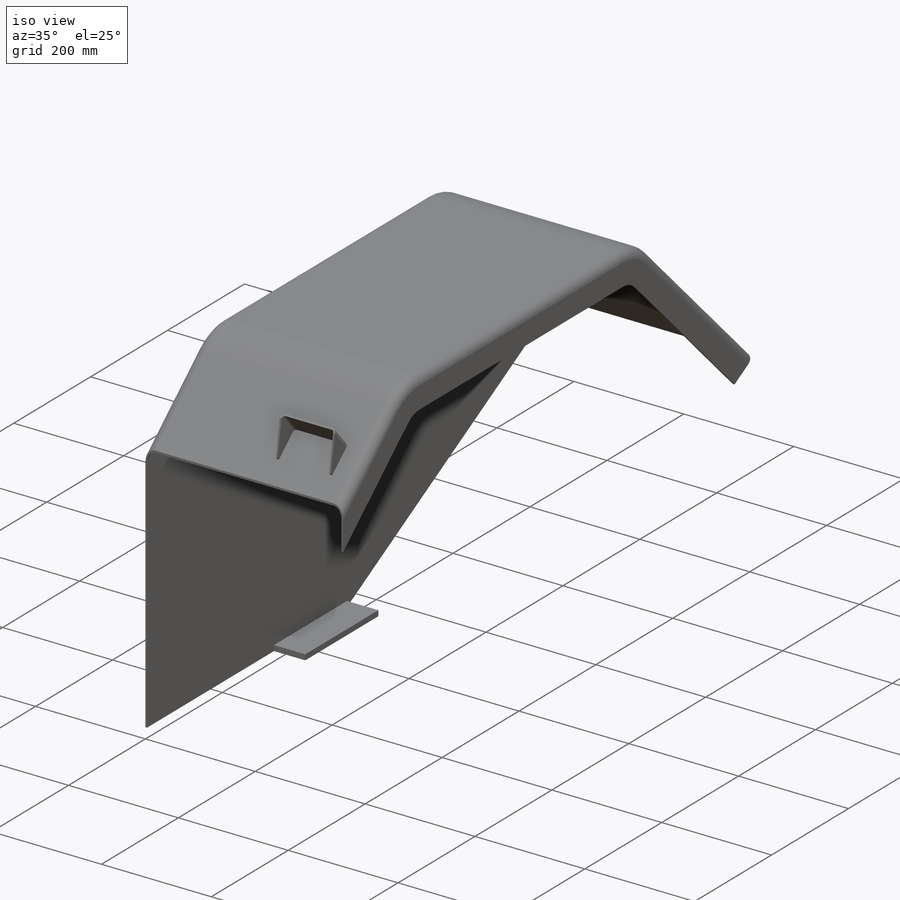
[diagram: iso view]
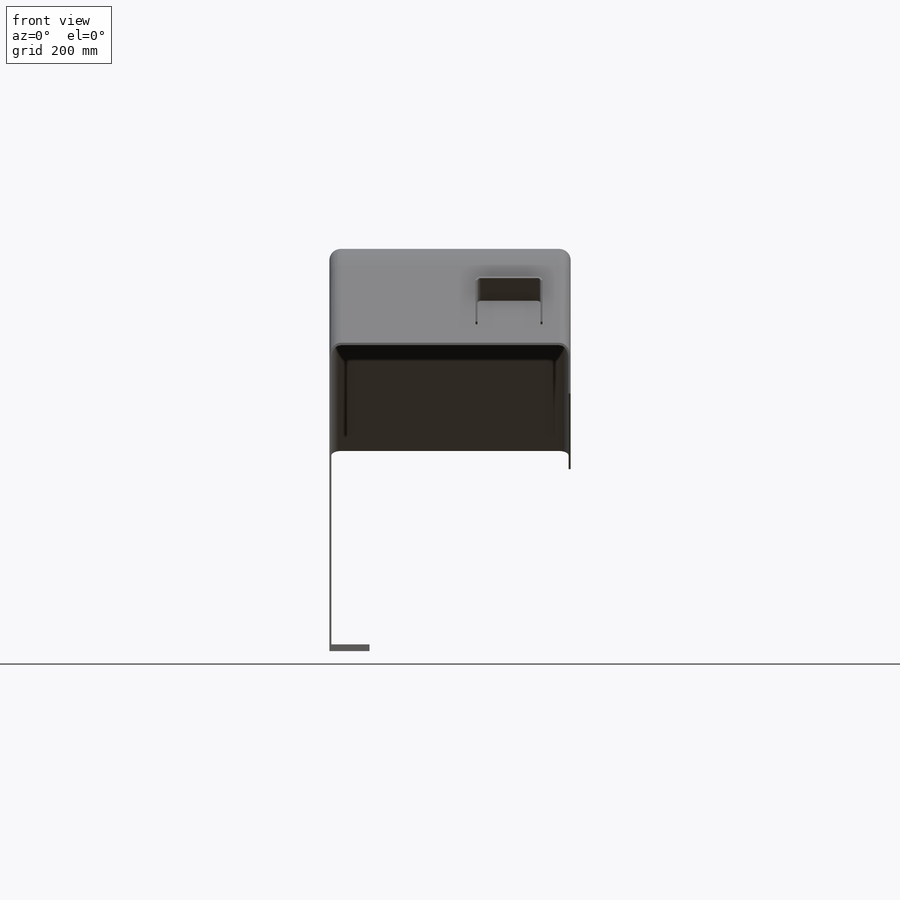
[diagram: front view]
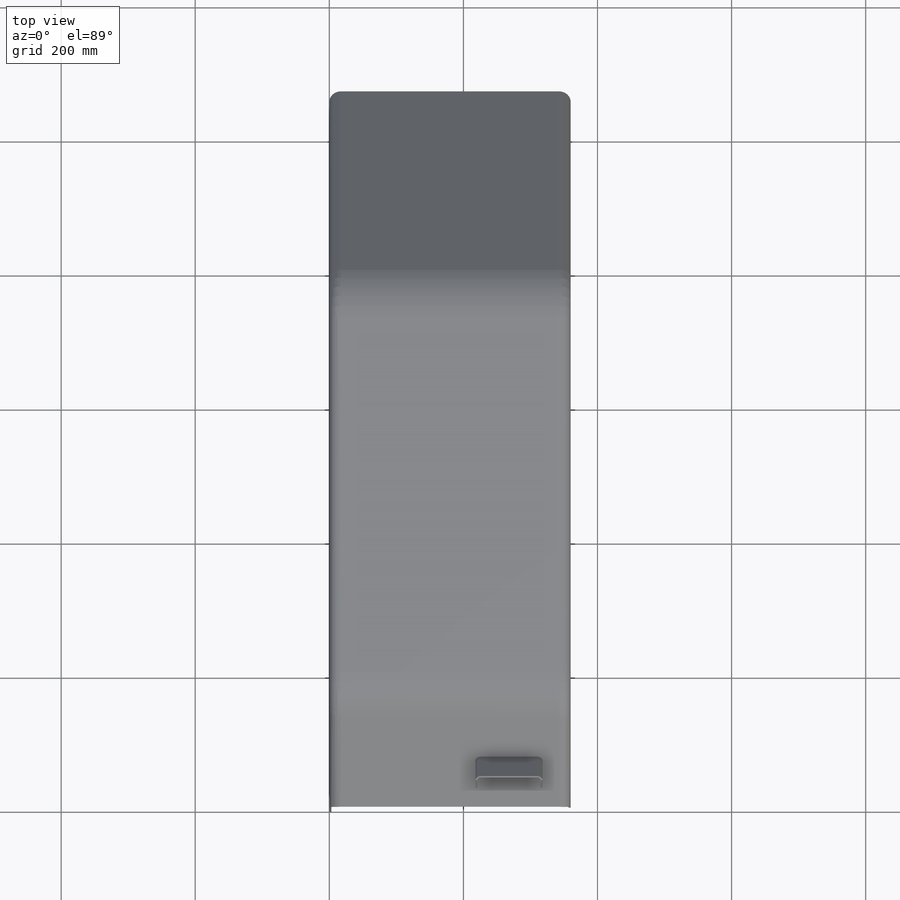
[diagram: top view]
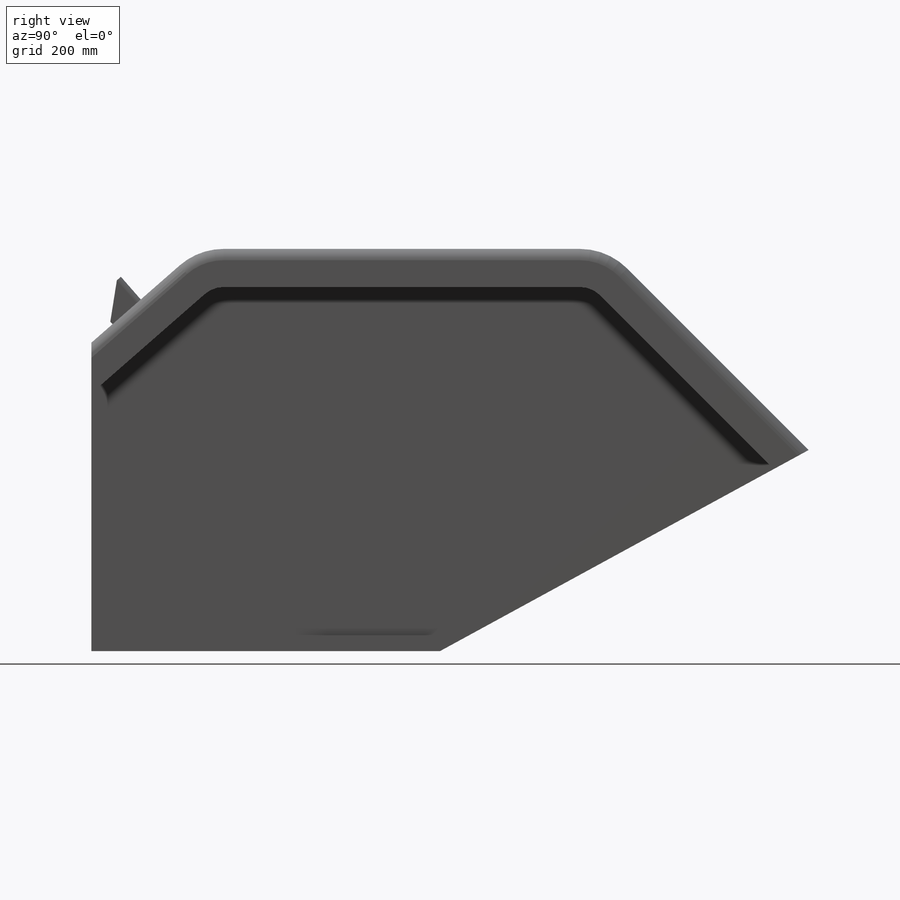
[diagram: right view]
SOLIDWORKS PART (.sldprt)
format: sldprt  version: not decoded by parser v0  size: 550,912 bytes
history: native  units: mm
features: sketch x6, extrude x4, fillet x3, cut_extrude x2, material x1, shell x1, move_body x1 (+13 scaffold rows collapsed; 1 parser-record rows omitted)
feature tree (32):
  scaffold x13  (default folders/planes/origin — collapsed)
  material  "Material <not specified>"
  sketch  "Sketch12"  dims[c1.D1=520.0mm c1.D2=460.0mm c1.D3=160.0mm c1.D4=140.0mm c1.D5=610.0mm c1.D6=300.0mm c1.D7=300.0mm c1.D8=550.0mm c2.D1=0.0mm]
  extrude  "Boss-Extrude7"  Depth=360mm
  fillet  "Fillet1"  Radius=100mm
  fillet  "Fillet7"  Radius=17mm
  shell  "Shell1"  Thickness=3mm
  sketch  "Sketch11"  dims[D1=10.0mm D2=190.0mm D3=200.0mm]
  extrude  "Boss-Extrude6"  Depth=57mm
  sketch  "Sketch14"  dims[D1=40.0mm]
  extrude  "Boss-Extrude8"  [1 undecoded]
  sketch  "Sketch15"  dims[c1.D1=42.0mm c1.D2=56.0mm c1.D3=42.0mm c2.D1=42.0mm c2.D3=42.0mm c2.D4=100.0mm]
  extrude  "Boss-Extrude9"  Depth=45mm
  fillet  "Fillet8"  Radius=8mm
  sketch  "Sketch17"  dims[D1=3.0mm]
  cut_extrude  "Cut-Extrude2"  [1 undecoded]
  sketch  "Sketch16"  dims[D1=5.0mm]
  cut_extrude  "Cut-Extrude1"  [1 undecoded]
  parser-record x1  (decoder bookkeeping rows leaked as tree rows — omitted from the tree; the rows remain in map.json)
  move_body  "Body-Move/Copy1"
decode coverage: 13 of 17 modeling features carry decoded parameters
note: 3 parameter values undecoded
summary: no parameter record found for 3 features
note: suppression state not decoded; provenance and decode notes live in map.json
